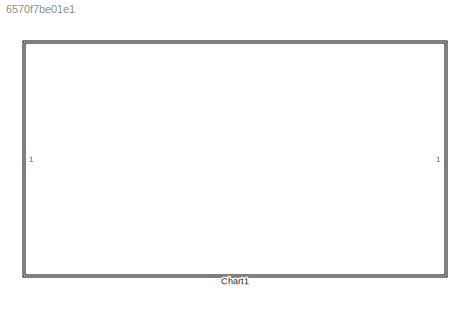
MODEL slx_6570f7be01e1
KIND model
CONFIG AbsTol = auto
CONFIG EnableMultiTasking = off
CONFIG FixedStep = auto
CONFIG MaxStep = auto
CONFIG MinStep = auto
CONFIG RelTol = 1e-3
CONFIG SampleTimeConstraint = Unconstrained
CONFIG SolverName = VariableStepAuto
CONFIG StartTime = 0.0
CONFIG StopTime = 10.0
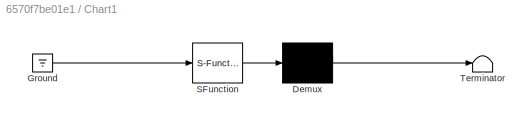
BLOCK [SubSystem] Chart1
  ErrorFcn = Stateflow.Translate.translate
  PermitHierarchicalResolution = ExplicitOnly
  SFBlockType = Chart
  TreatAsAtomicUnit = on
BLOCK [Demux] Chart1/ Demux 
  Outputs = 1
BLOCK [Ground] Chart1/ Ground 
BLOCK [S-Function] Chart1/ SFunction 
  EnableBusSupport = off
  FunctionName = sf_sfun
  PortCounts = [1 1]
  SFcnIsStateOwnerBlock = off
  SFunctionDeploymentMode = off
  Tag = Stateflow S-Function 1
BLOCK [Terminator] Chart1/ Terminator 
CHART Chart1 states=8 transitions=21
  STATE_LABEL 'Config'
  STATE_LABEL 'Init'
  STATE_LABEL 'Eph_Input'
  STATE_LABEL 'Standby'
  STATE_LABEL 'Waking_up'
  STATE_LABEL 'Manual'
  STATE_LABEL 'Sleep'
  STATE_LABEL 'Auto_Mode'
CHART  states=0 transitions=0
